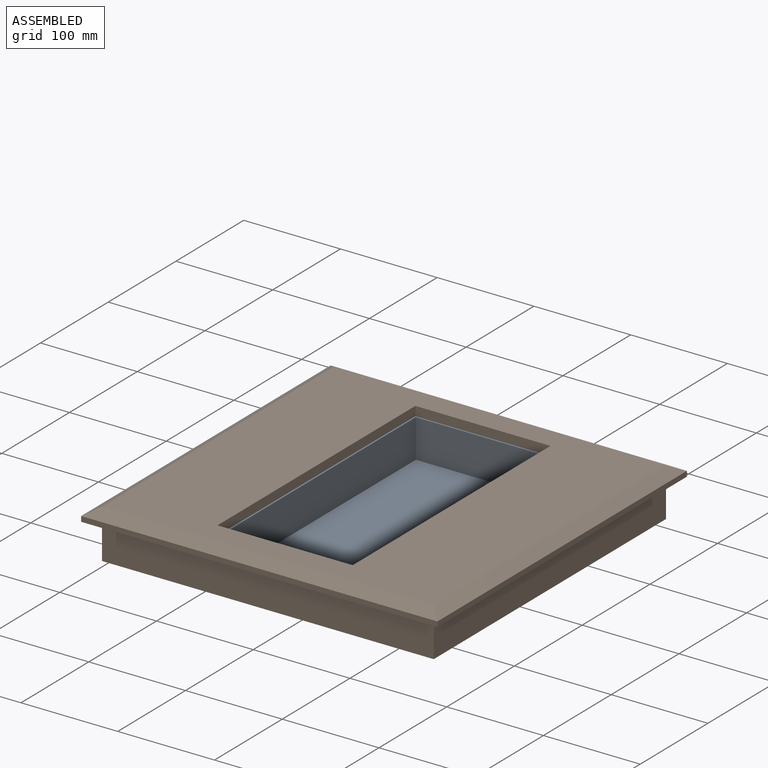
[diagram: assembled view]
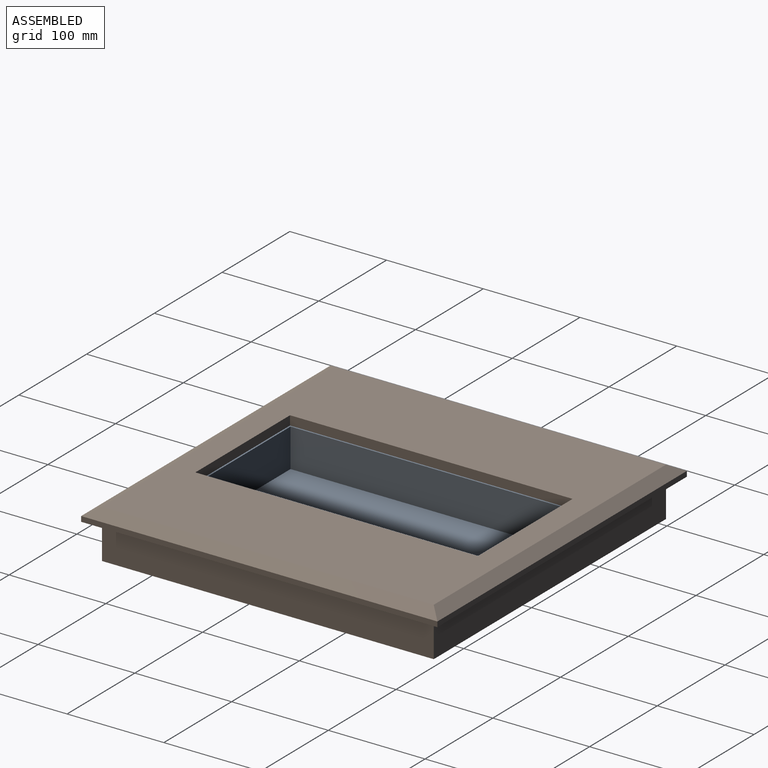
[diagram: assembled view, second angle]
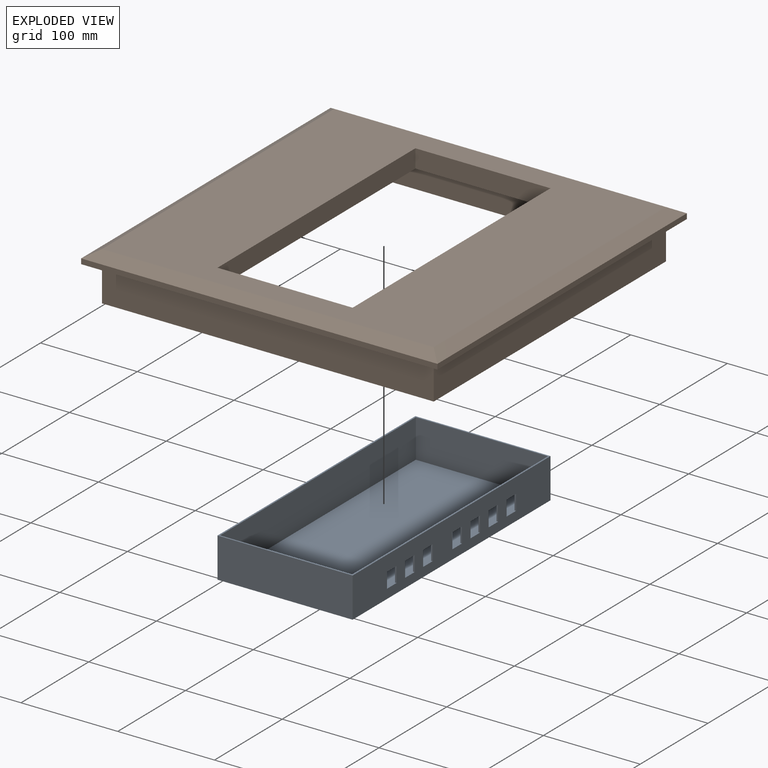
[diagram: exploded view]
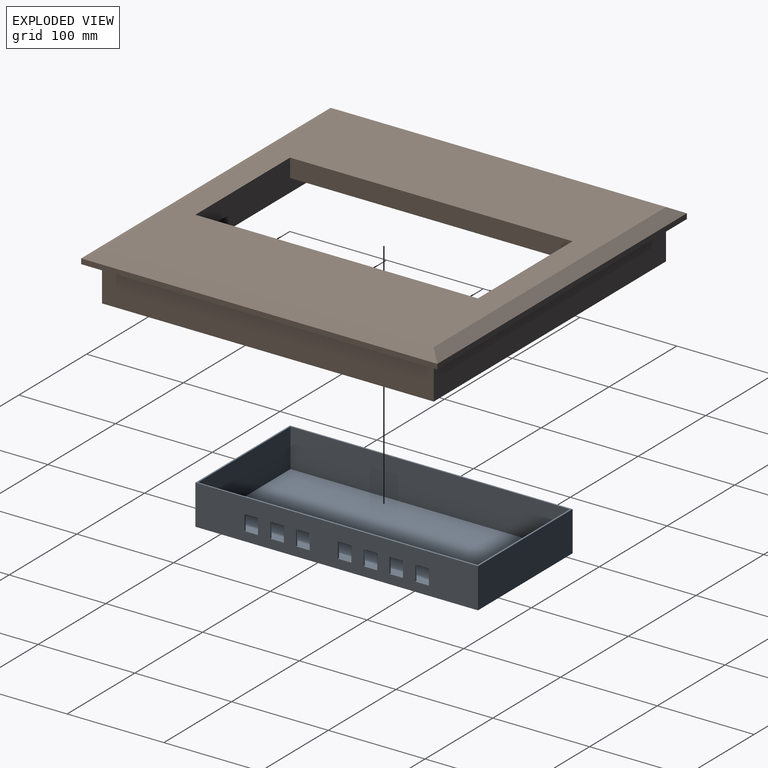
[diagram: exploded view, second angle]
ASSEMBLY  parts=2 mates=3
PART A: 39 faces, bbox 139.7x292.1x41.3 mm
  f0: plane 292.1x41.28mm, normal (1,0,0), area 10504mm2, adj f2,f4,f5,f6,f11,f12,f13,f14
  f1: plane 288.93x39.69mm, normal (-1,0,0), area 9914.3mm2, adj f2,f8,f9,f10,f11,f12,f13,f14
  f2: plane 292.1x139.7mm, normal (0,0,1), area 1360.9mm2, adj f0,f1,f3,f4,f5,f7,f8,f9
  f3: plane 292.1x41.28mm, normal (-1,0,0), area 12056.4mm2, adj f2,f4,f5,f6
  f4: plane 139.7x41.28mm, normal (0,-1,0), area 5766.1mm2, adj f0,f2,f3,f6
  f5: plane 139.7x41.28mm, normal (0,1,0), area 5766.1mm2, adj f0,f2,f3,f6
  f6: plane 292.1x139.7mm, normal (0,0,-1), area 40806.4mm2, adj f0,f3,f4,f5
  f7: plane 288.93x39.69mm, normal (1,0,0), area 11466.7mm2, adj f2,f8,f9,f10
  f8: plane 136.53x39.69mm, normal (0,1,0), area 5418.3mm2, adj f1,f2,f7,f10
  f9: plane 136.53x39.69mm, normal (0,-1,0), area 5418.3mm2, adj f1,f2,f7,f10
  f10: plane 288.93x136.53mm, normal (0,0,1), area 39445.5mm2, adj f1,f7,f8,f9
  f11: plane 13.97x1.59mm, normal (0,0,-1), area 22.2mm2, adj f0,f1,f12,f14
  f12: plane 15.88x1.59mm, normal (0,1,0), area 25.2mm2, adj f0,f1,f11,f13
  f13: plane 13.97x1.59mm, normal (0,0,1), area 22.2mm2, adj f0,f1,f12,f14
  f14: plane 15.88x1.59mm, normal (0,-1,0), area 25.2mm2, adj f0,f1,f11,f13
  f15: plane 13.97x1.59mm, normal (0,0,-1), area 22.2mm2, adj f0,f1,f16,f18
  f16: plane 15.88x1.59mm, normal (0,1,0), area 25.2mm2, adj f0,f1,f15,f17
  f17: plane 13.97x1.59mm, normal (0,0,1), area 22.2mm2, adj f0,f1,f16,f18
  f18: plane 15.88x1.59mm, normal (0,-1,0), area 25.2mm2, adj f0,f1,f15,f17
  f19: plane 13.97x1.59mm, normal (0,0,-1), area 22.2mm2, adj f0,f1,f20,f22
  f20: plane 15.88x1.59mm, normal (0,1,0), area 25.2mm2, adj f0,f1,f19,f21
  f21: plane 13.97x1.59mm, normal (0,0,1), area 22.2mm2, adj f0,f1,f20,f22
  f22: plane 15.88x1.59mm, normal (0,-1,0), area 25.2mm2, adj f0,f1,f19,f21
  f23: plane 13.97x1.59mm, normal (0,0,-1), area 22.2mm2, adj f0,f1,f24,f26
  f24: plane 15.88x1.59mm, normal (0,1,0), area 25.2mm2, adj f0,f1,f23,f25
  f25: plane 13.97x1.59mm, normal (0,0,1), area 22.2mm2, adj f0,f1,f24,f26
  f26: plane 15.88x1.59mm, normal (0,-1,0), area 25.2mm2, adj f0,f1,f23,f25
  f27: plane 13.97x1.59mm, normal (0,0,-1), area 22.2mm2, adj f0,f1,f28,f30
  f28: plane 15.88x1.59mm, normal (0,1,0), area 25.2mm2, adj f0,f1,f27,f29
  f29: plane 13.97x1.59mm, normal (0,0,1), area 22.2mm2, adj f0,f1,f28,f30
  f30: plane 15.88x1.59mm, normal (0,-1,0), area 25.2mm2, adj f0,f1,f27,f29
  f31: plane 13.97x1.59mm, normal (0,0,-1), area 22.2mm2, adj f0,f1,f32,f34
  f32: plane 15.88x1.59mm, normal (0,1,0), area 25.2mm2, adj f0,f1,f31,f33
  f33: plane 13.97x1.59mm, normal (0,0,1), area 22.2mm2, adj f0,f1,f32,f34
  f34: plane 15.88x1.59mm, normal (0,-1,0), area 25.2mm2, adj f0,f1,f31,f33
  f35: plane 13.97x1.59mm, normal (0,0,-1), area 22.2mm2, adj f0,f1,f36,f38
  f36: plane 15.88x1.59mm, normal (0,1,0), area 25.2mm2, adj f0,f1,f35,f37
  f37: plane 13.97x1.59mm, normal (0,0,1), area 22.2mm2, adj f0,f1,f36,f38
  f38: plane 15.88x1.59mm, normal (0,-1,0), area 25.2mm2, adj f0,f1,f35,f37
PART B: 34 faces, bbox 368.3x368.3x50.8 mm
  f0: plane 342.9x342.9mm, normal (0,0,-1), area 4314.5mm2, adj f10,f11,f12,f13,f19,f20,f21,f22
  f1: plane 139.7x19.05mm, normal (0,-1,0), area 2661.3mm2, adj f2,f4,f5,f23
  f2: plane 292.1x19.05mm, normal (1,0,0), area 5564.5mm2, adj f1,f3,f5,f23
  f3: plane 139.7x19.05mm, normal (0,1,0), area 2661.3mm2, adj f2,f4,f5,f23
  f4: plane 292.1x19.05mm, normal (-1,0,0), area 5564.5mm2, adj f1,f3,f5,f23
  f5: plane 342.9x342.9mm, normal (0,0,1), area 76774mm2, adj f1,f2,f3,f4,f15,f16,f17,f18
  f6: plane 368.3x5.37mm, normal (-1,0,0), area 1976.9mm2, adj f7,f9,f14,f18
  f7: plane 368.3x5.37mm, normal (0,-1,0), area 1976.9mm2, adj f6,f8,f14,f16
  f8: plane 368.3x5.37mm, normal (1,0,0), area 1976.9mm2, adj f7,f9,f14,f15
  f9: plane 368.3x5.37mm, normal (0,1,0), area 1976.9mm2, adj f6,f8,f14,f17
  f10: plane 342.9x38.1mm, normal (1,0,0), area 13064.5mm2, adj f0,f11,f13,f14
  f11: plane 342.9x38.1mm, normal (0,1,0), area 13064.5mm2, adj f0,f10,f12,f14
  f12: plane 342.9x38.1mm, normal (-1,0,0), area 13064.5mm2, adj f0,f11,f13,f14
  f13: plane 342.9x38.1mm, normal (0,-1,0), area 13064.5mm2, adj f0,f10,f12,f14
  f14: plane 368.3x368.3mm, normal (0,0,-1), area 18064.5mm2, adj f6,f7,f8,f9,f10,f11,f12,f13
  f15: plane 368.3x12.7mm, normal (0.5,0,0.87), area 5214.8mm2, adj f5,f8,f16,f17
  f16: plane 368.3x12.7mm, normal (0,-0.5,0.87), area 5214.8mm2, adj f5,f7,f15,f18
  f17: plane 368.3x12.7mm, normal (0,0.5,0.87), area 5214.8mm2, adj f5,f9,f15,f18
  f18: plane 368.3x12.7mm, normal (-0.5,0,0.87), area 5214.8mm2, adj f5,f6,f16,f17
  f19: plane 336.55x31.75mm, normal (0,1,0), area 10685.5mm2, adj f0,f20,f22,f23
  f20: plane 336.55x31.75mm, normal (1,0,0), area 10685.5mm2, adj f0,f19,f21,f23
  f21: plane 336.55x31.75mm, normal (0,-1,0), area 10685.5mm2, adj f0,f20,f22,f23
  f22: plane 336.55x31.75mm, normal (-1,0,0), area 10685.5mm2, adj f0,f19,f21,f23
  f23: plane 336.55x336.55mm, normal (0,0,-1), area 68738.1mm2, adj f1,f2,f3,f4,f19,f20,f21,f22
  f24: plane 292.1x6.35mm, normal (0,0,-1), area 1854.8mm2, adj f25,f26,f27,f28
  f25: plane 292.1x12.7mm, normal (-1,0,0), area 3709.7mm2, adj f23,f24,f26,f28
  f26: plane 12.7x6.35mm, normal (0,-1,0), area 80.6mm2, adj f23,f24,f25,f27
  f27: plane 292.1x12.7mm, normal (1,0,0), area 3709.7mm2, adj f23,f24,f26,f28
  f28: plane 12.7x6.35mm, normal (0,1,0), area 80.6mm2, adj f23,f24,f25,f27
  f29: plane 293.96x6.35mm, normal (0,0,-1), area 1866.6mm2, adj f30,f31,f32,f33
  f30: plane 12.7x6.35mm, normal (0,-1,0), area 80.6mm2, adj f23,f29,f31,f33
  f31: plane 293.96x12.7mm, normal (1,0,0), area 3733.3mm2, adj f23,f29,f30,f32
  f32: plane 12.7x6.35mm, normal (0,1,0), area 80.6mm2, adj f23,f29,f31,f33
  f33: plane 293.96x12.7mm, normal (-1,0,0), area 3733.3mm2, adj f23,f29,f30,f32
PLACE A t=(104.57,-16.43,17.98)mm
PLACE B t=(-9.73,-54.53,17.98)mm
MATE planar A.f6 <-> B.f0  axis (0,0,-1) through (174.42,275.67,17.98)mm
MATE planar A.f5 <-> B.f1  axis (0,1,0) through (174.42,275.67,38.62)mm
MATE planar A.f0 <-> B.f4  axis (1,0,0) through (244.27,129.62,17.98)mm
